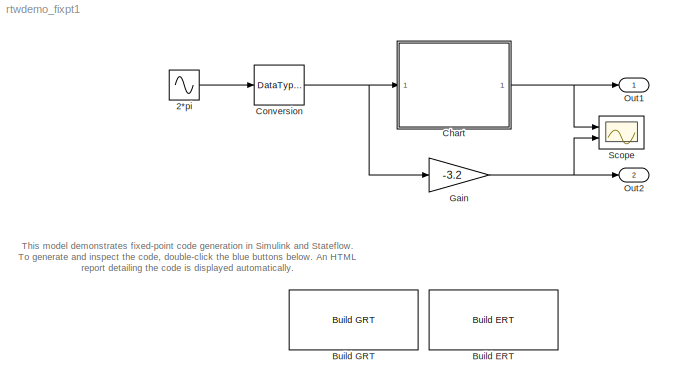
MODEL rtwdemo_fixpt1
KIND model
BLOCK [Sin] 2*pi
  Frequency = 2*pi
  Ports = [0, 1]
  SampleTime = .01
  Samples = 100
  SineType = Sample based
BLOCK [Reference] Build ERT  REF=rtwdemowidgets/Build ERT
  Ports = []
  ShowPortLabels = on
  SourceBlock = rtwdemowidgets/Build ERT
  attrib_overrides = {}
BLOCK [Reference] Build GRT  REF=rtwdemowidgets/Build GRT
  Ports = []
  ShowPortLabels = on
  SourceBlock = rtwdemowidgets/Build GRT
  attrib_overrides = {}
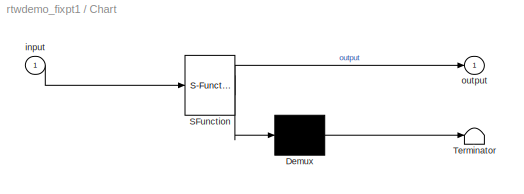
BLOCK [SubSystem] Chart
  MaskDescription = Stateflow diagram
  MaskDisplay = plot(sf('Private','sfblk','xIcon'),sf('Private','sfblk','yIcon'));text(0.5,0,sf('Private', 'sfblk', 'tIcon'),'HorizontalAl','Center','VerticalAl','Bottom');
  MaskIconFrame = off
  MaskIconOpaque = off
  MaskIconRotate = none
  MaskIconUnits = autoscale
  MaskSelfModifiable = on
  MaskType = Stateflow
  MinAlgLoopOccurrences = off
  Ports = [1, 1]
  PropExecContextAcrossSSBoundary = on
  RTWSystemCode = Auto
  TreatAsAtomicUnit = off
BLOCK [Demux] Chart/ Demux 
  Outputs = 1
  Ports = [1, 1]
BLOCK [S-Function] Chart/ SFunction 
  FunctionName = sf_sfun
  PortCounts = [1 2]
  Ports = [1, 2]
  Tag = Stateflow S-Function rtwdemo_fixpt1 1
BLOCK [Terminator] Chart/ Terminator 
BLOCK [Inport] Chart/input
  IconDisplay = Port number
  LatchInput = off
  Port = 1
BLOCK [Outport] Chart/output
  BusOutputAsStruct = off
  IconDisplay = Port number
BLOCK [DataTypeConversion] Conversion
  OutDataTypeMode = Specify via dialog
  OutScaling = 2^-4
  RndMeth = Floor
  SaturateOnIntegerOverflow = off
BLOCK [Gain] Gain
  Gain = -3.2
  OutDataTypeMode = Specify via dialog
  OutScaling = 2^-4
  ParameterDataTypeMode = Specify via dialog
  ParameterScaling = 2^-4
  ParameterScalingMode = Use specified scaling
  SaturateOnIntegerOverflow = off
BLOCK [Outport] Out1
  BusOutputAsStruct = off
  IconDisplay = Port number
BLOCK [Outport] Out2
  BusOutputAsStruct = off
  IconDisplay = Port number
  Port = 2
BLOCK [Scope] Scope
  DataFormat = StructureWithTime
  LimitDataPoints = off
  NumInputPorts = 2
  Ports = [2]
  TimeRange = 1
  YMax = 4~5
  YMin = -2~-5
ANNOTATION (root): This model demonstrates fixed-point code generation in Simulink and Stateflow.\nTo generate and inspect the code, double-click the blue buttons below. An HTML\nreport detailing the code is displayed automatically.
LINE 2*pi:1 -> Conversion:1
LINE Chart/ Demux :1 -> Chart/ Terminator :1
LINE Chart/ SFunction :1 -> Chart/ Demux :1
LINE Chart/ SFunction :2 -> Chart/output:1
LINE Chart/input:1 -> Chart/ SFunction :1
NET Chart:1 -> Out1:1, Scope:1
NET Conversion:1 -> Chart:1, Gain:1
NET Gain:1 -> Out2:1, Scope:2
note: NET lines group one-source signal fan-out (src -> all destinations, sorted); 1:1 wires keep LINE
CHART Chart states=1 transitions=4
  STATE_LABEL 'out = fixout(fixin)'
